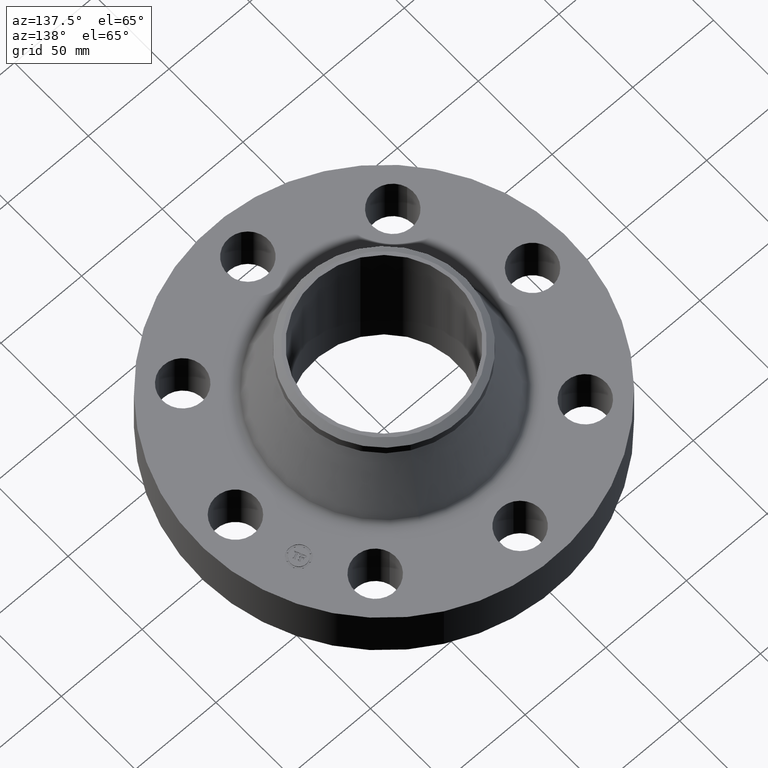
[diagram: clean part render]
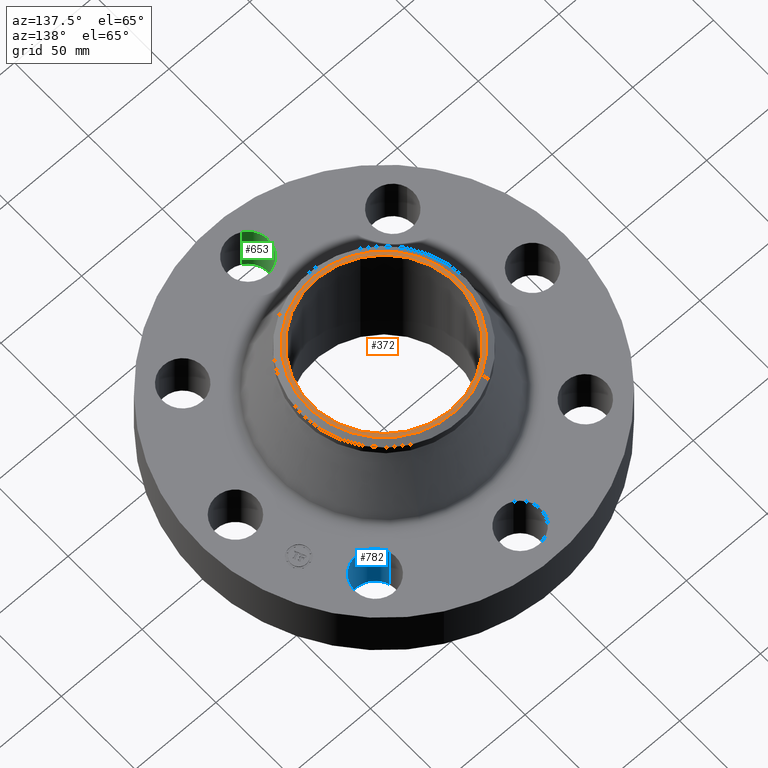
[diagram: same view with three faces highlighted in distinct colors, each labeled with its STEP entity id]
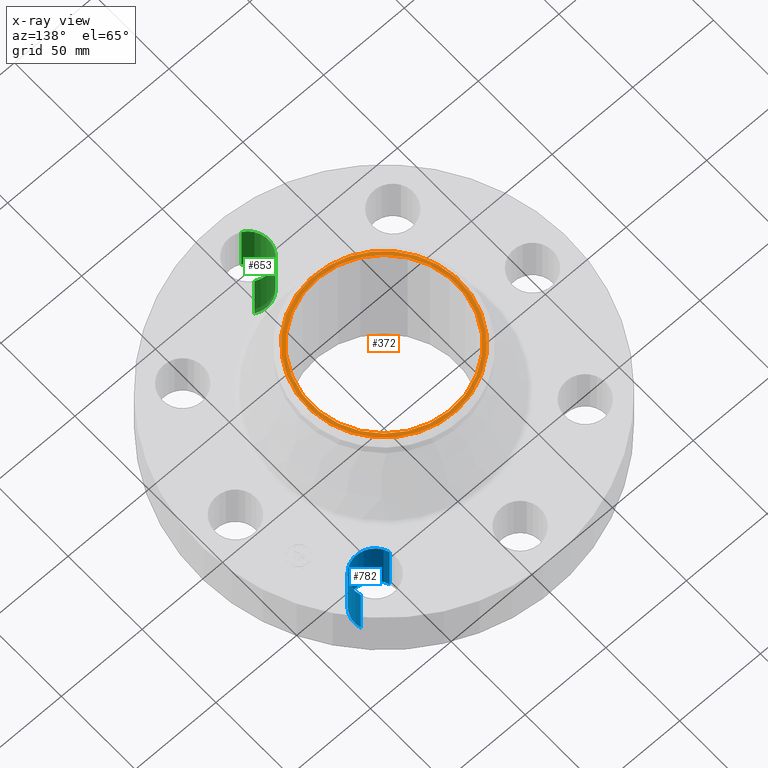
[diagram: x-ray of the same camera — body ghosted, the three highlighted faces saturated]
A machine part, auxiliary view with three faces highlighted in distinct colors.
The next image is the same camera in x-ray (body ghosted, the three faces saturated) — at least one of them is partly hidden behind the body in this view.
Their STEP definitions:

[orange] entity #372 — the highlighted planar face has unit normal (0, 0, -1).
#322=AXIS2_PLACEMENT_3D('Circle Axis2P3D',#320,#321,$) ;
#343=AXIS2_PLACEMENT_3D('Plane Axis2P3D',#340,#341,#342) ;
#347=AXIS2_PLACEMENT_3D('Circle Axis2P3D',#345,#346,$) ;
#356=AXIS2_PLACEMENT_3D('Circle Axis2P3D',#354,#355,$) ;
#365=AXIS2_PLACEMENT_3D('Circle Axis2P3D',#363,#364,$) ;
#317=CARTESIAN_POINT('Vertex',(0.888250947897,-1.62593245392,3.38000000001)) ;
#320=CARTESIAN_POINT('Axis2P3D Location',(0.,0.,3.38000000001)) ;
#324=CARTESIAN_POINT('Vertex',(-0.888250947897,1.62593245392,3.38000000001)) ;
#340=CARTESIAN_POINT('Axis2P3D Location',(0.,2.00000000001,3.38000000001)) ;
#345=CARTESIAN_POINT('Axis2P3D Location',(0.,0.,3.38000000001)) ;
#354=CARTESIAN_POINT('Axis2P3D Location',(0.,0.,3.38000000001)) ;
#358=CARTESIAN_POINT('Vertex',(-0.850500905487,-1.5568314648,3.38000000001)) ;
#360=CARTESIAN_POINT('Vertex',(0.850500905487,1.5568314648,3.38000000001)) ;
#363=CARTESIAN_POINT('Axis2P3D Location',(0.,0.,3.38000000001)) ;
#321=DIRECTION('Axis2P3D Direction',(0.,0.,-0.0393700787402)) ;
#341=DIRECTION('Axis2P3D Direction',(0.,0.,-0.0393700787402)) ;
#342=DIRECTION('Axis2P3D XDirection',(0.0393700787402,0.,0.)) ;
#346=DIRECTION('Axis2P3D Direction',(0.,0.,-0.0393700787402)) ;
#355=DIRECTION('Axis2P3D Direction',(0.,0.,-0.0393700787402)) ;
#364=DIRECTION('Axis2P3D Direction',(0.,0.,-0.0393700787402)) ;
#351=ORIENTED_EDGE('',*,*,#349,.T.) ;
#352=ORIENTED_EDGE('',*,*,#326,.T.) ;
#369=ORIENTED_EDGE('',*,*,#362,.T.) ;
#370=ORIENTED_EDGE('',*,*,#367,.T.) ;
#371=FACE_BOUND('',#368,.T.) ;
#372=ADVANCED_FACE('PartBody',(#353,#371),#344,.F.) ;
#323=CIRCLE('generated circle',#322,1.85274015749) ;
#348=CIRCLE('generated circle',#347,1.85274015749) ;
#357=CIRCLE('generated circle',#356,1.77400000001) ;
#366=CIRCLE('generated circle',#365,1.77400000001) ;
#326=EDGE_CURVE('',#325,#318,#323,.F.) ;
#349=EDGE_CURVE('',#318,#325,#348,.F.) ;
#362=EDGE_CURVE('',#359,#361,#357,.T.) ;
#367=EDGE_CURVE('',#361,#359,#366,.T.) ;
#350=EDGE_LOOP('',(#351,#352)) ;
#368=EDGE_LOOP('',(#369,#370)) ;
#353=FACE_OUTER_BOUND('',#350,.T.) ;
#344=PLANE('',#343) ;
#318=VERTEX_POINT('',#317) ;
#325=VERTEX_POINT('',#324) ;
#359=VERTEX_POINT('',#358) ;
#361=VERTEX_POINT('',#360) ;

[blue] entity #782 — the highlighted cylindrical surface (edge-blend (fillet) strip) has radius 12.7 mm, axis along (0, 0, -1).
#560=AXIS2_PLACEMENT_3D('Circle Axis2P3D',#558,#559,$) ;
#743=AXIS2_PLACEMENT_3D('Cylinder Axis2P3D',#740,#741,#742) ;
#773=AXIS2_PLACEMENT_3D('Circle Axis2P3D',#771,#772,$) ;
#553=CARTESIAN_POINT('Vertex',(2.08348726682,2.42249231624,0.)) ;
#555=CARTESIAN_POINT('Vertex',(3.04303689681,2.70403184738,0.)) ;
#558=CARTESIAN_POINT('Axis2P3D Location',(2.56326208181,2.56326208181,0.)) ;
#740=CARTESIAN_POINT('Axis2P3D Location',(2.56326208181,2.56326208181,1.37606299213)) ;
#745=CARTESIAN_POINT('Line Origine',(2.08348726682,2.42249231624,0.690000000003)) ;
#749=CARTESIAN_POINT('Vertex',(2.08348726682,2.42249231624,1.38000000001)) ;
#752=CARTESIAN_POINT('Line Origine',(3.04303689681,2.70403184738,0.690000000003)) ;
#756=CARTESIAN_POINT('Vertex',(3.04303689681,2.70403184738,1.38000000001)) ;
#771=CARTESIAN_POINT('Axis2P3D Location',(2.56326208181,2.56326208181,1.38000000001)) ;
#559=DIRECTION('Axis2P3D Direction',(0.,0.,-0.0393700787402)) ;
#741=DIRECTION('Axis2P3D Direction',(0.,0.,-0.0393700787402)) ;
#742=DIRECTION('Axis2P3D XDirection',(0.0377775444876,0.0110842335096,0.)) ;
#746=DIRECTION('Vector Direction',(0.,0.,-0.0393700787402)) ;
#753=DIRECTION('Vector Direction',(0.,0.,-0.0393700787402)) ;
#772=DIRECTION('Axis2P3D Direction',(0.,0.,-0.0393700787402)) ;
#747=VECTOR('Line Direction',#746,0.0393700787402) ;
#754=VECTOR('Line Direction',#753,0.0393700787402) ;
#777=ORIENTED_EDGE('',*,*,#758,.F.) ;
#778=ORIENTED_EDGE('',*,*,#562,.T.) ;
#779=ORIENTED_EDGE('',*,*,#751,.T.) ;
#780=ORIENTED_EDGE('',*,*,#775,.F.) ;
#782=ADVANCED_FACE('PartBody',(#781),#744,.F.) ;
#561=CIRCLE('generated circle',#560,0.500000000002) ;
#774=CIRCLE('generated circle',#773,0.500000000002) ;
#744=CYLINDRICAL_SURFACE('generated cylinder',#743,0.500000000002) ;
#562=EDGE_CURVE('',#556,#554,#561,.T.) ;
#751=EDGE_CURVE('',#554,#750,#748,.F.) ;
#758=EDGE_CURVE('',#556,#757,#755,.F.) ;
#775=EDGE_CURVE('',#757,#750,#774,.T.) ;
#776=EDGE_LOOP('',(#777,#778,#779,#780)) ;
#781=FACE_OUTER_BOUND('',#776,.T.) ;
#748=LINE('Line',#745,#747) ;
#755=LINE('Line',#752,#754) ;
#554=VERTEX_POINT('',#553) ;
#556=VERTEX_POINT('',#555) ;
#750=VERTEX_POINT('',#749) ;
#757=VERTEX_POINT('',#756) ;

[green] entity #653 — the highlighted cylindrical surface (edge-blend (fillet) strip) has radius 12.7 mm, axis along (0, -0, -1).
#470=AXIS2_PLACEMENT_3D('Circle Axis2P3D',#468,#469,$) ;
#614=AXIS2_PLACEMENT_3D('Cylinder Axis2P3D',#611,#612,#613) ;
#644=AXIS2_PLACEMENT_3D('Circle Axis2P3D',#642,#643,$) ;
#463=CARTESIAN_POINT('Vertex',(0.239712769303,-3.18620871907,0.)) ;
#465=CARTESIAN_POINT('Vertex',(-0.239712769303,-4.06379128096,0.)) ;
#468=CARTESIAN_POINT('Axis2P3D Location',(-4.19611851827E-016,-3.62500000001,0.)) ;
#611=CARTESIAN_POINT('Axis2P3D Location',(-3.37515236756E-016,-3.62500000001,1.37606299213)) ;
#616=CARTESIAN_POINT('Line Origine',(0.239712769303,-3.18620871907,0.690000000003)) ;
#620=CARTESIAN_POINT('Vertex',(0.239712769303,-3.18620871907,1.38000000001)) ;
#623=CARTESIAN_POINT('Line Origine',(-0.239712769303,-4.06379128096,0.690000000003)) ;
#627=CARTESIAN_POINT('Vertex',(-0.239712769303,-4.06379128096,1.38000000001)) ;
#642=CARTESIAN_POINT('Axis2P3D Location',(-3.37515236756E-016,-3.62500000001,1.38000000001)) ;
#469=DIRECTION('Axis2P3D Direction',(0.,0.,-0.0393700787402)) ;
#612=DIRECTION('Axis2P3D Direction',(0.,-0.,-0.0393700787402)) ;
#613=DIRECTION('Axis2P3D XDirection',(-0.0188750212049,-0.0345504945626,0.)) ;
#617=DIRECTION('Vector Direction',(0.,0.,-0.0393700787402)) ;
#624=DIRECTION('Vector Direction',(0.,0.,-0.0393700787402)) ;
#643=DIRECTION('Axis2P3D Direction',(0.,-0.,-0.0393700787402)) ;
#618=VECTOR('Line Direction',#617,0.0393700787402) ;
#625=VECTOR('Line Direction',#624,0.0393700787402) ;
#648=ORIENTED_EDGE('',*,*,#629,.F.) ;
#649=ORIENTED_EDGE('',*,*,#472,.T.) ;
#650=ORIENTED_EDGE('',*,*,#622,.T.) ;
#651=ORIENTED_EDGE('',*,*,#646,.F.) ;
#653=ADVANCED_FACE('PartBody',(#652),#615,.F.) ;
#471=CIRCLE('generated circle',#470,0.500000000002) ;
#645=CIRCLE('generated circle',#644,0.500000000002) ;
#615=CYLINDRICAL_SURFACE('generated cylinder',#614,0.500000000002) ;
#472=EDGE_CURVE('',#466,#464,#471,.T.) ;
#622=EDGE_CURVE('',#464,#621,#619,.F.) ;
#629=EDGE_CURVE('',#466,#628,#626,.F.) ;
#646=EDGE_CURVE('',#628,#621,#645,.T.) ;
#647=EDGE_LOOP('',(#648,#649,#650,#651)) ;
#652=FACE_OUTER_BOUND('',#647,.T.) ;
#619=LINE('Line',#616,#618) ;
#626=LINE('Line',#623,#625) ;
#464=VERTEX_POINT('',#463) ;
#466=VERTEX_POINT('',#465) ;
#621=VERTEX_POINT('',#620) ;
#628=VERTEX_POINT('',#627) ;